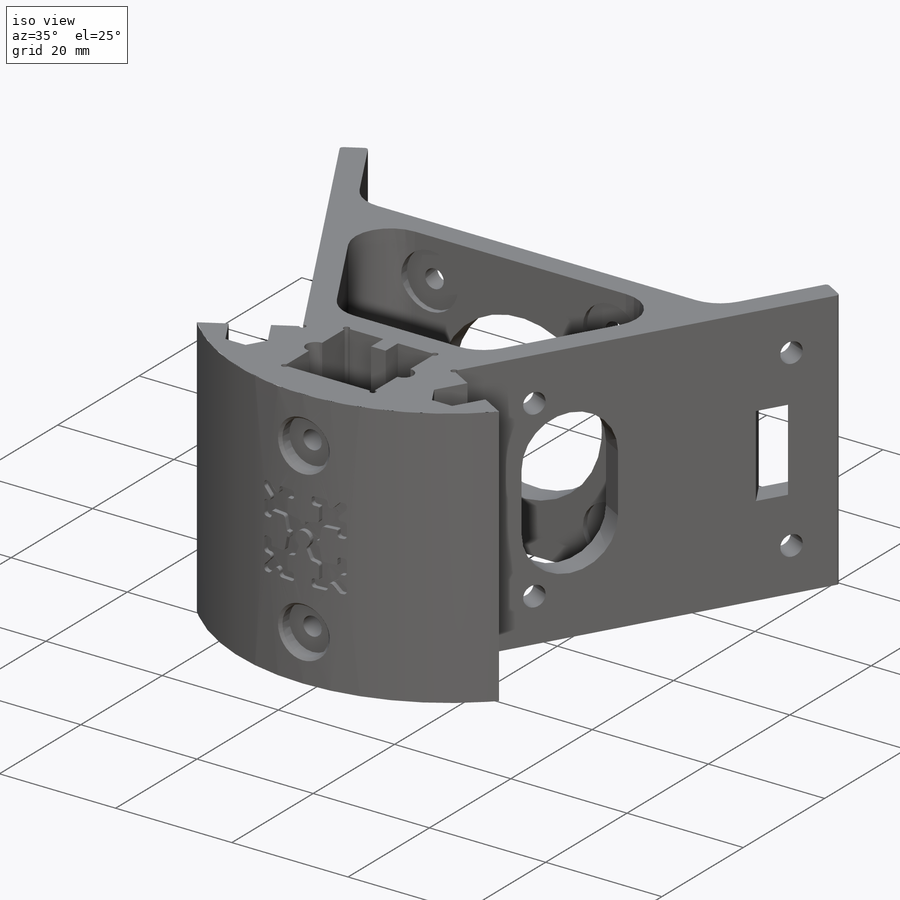
[diagram: iso view]
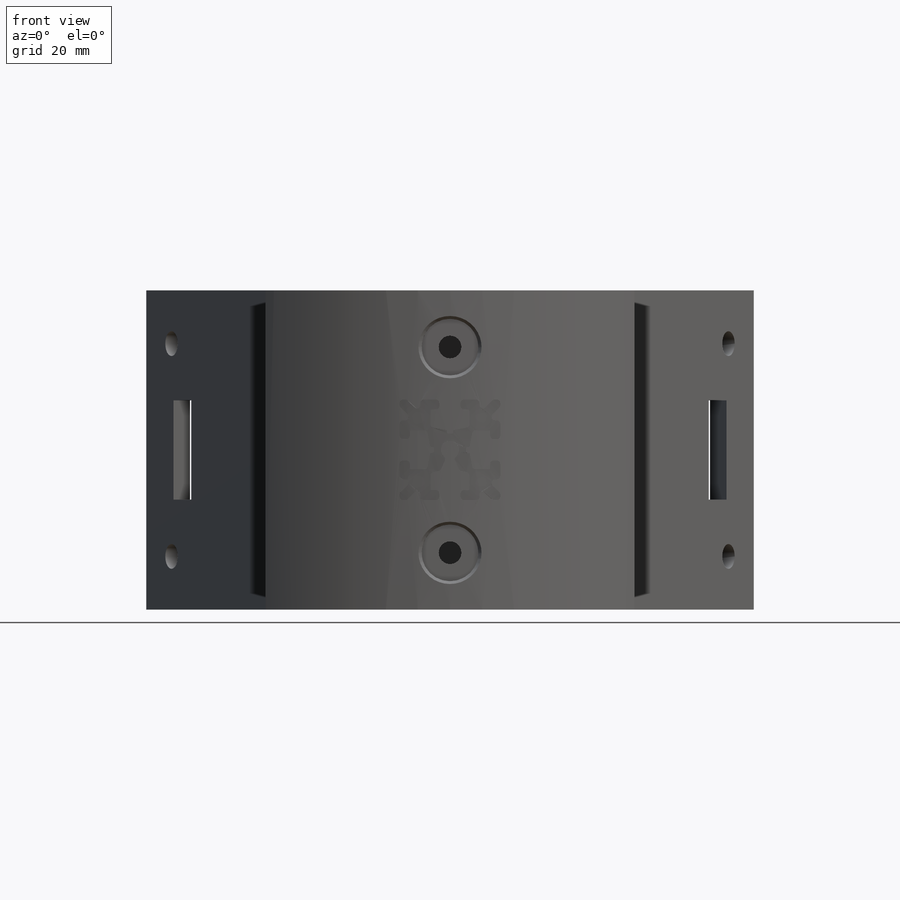
[diagram: front view]
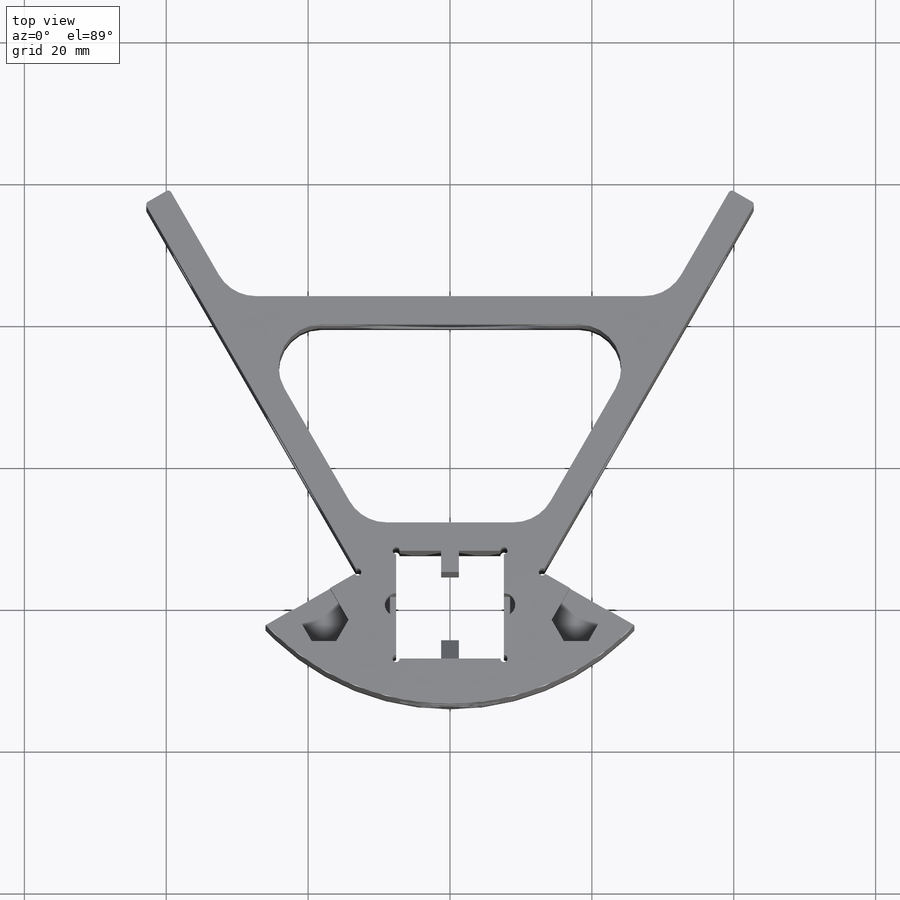
[diagram: top view]
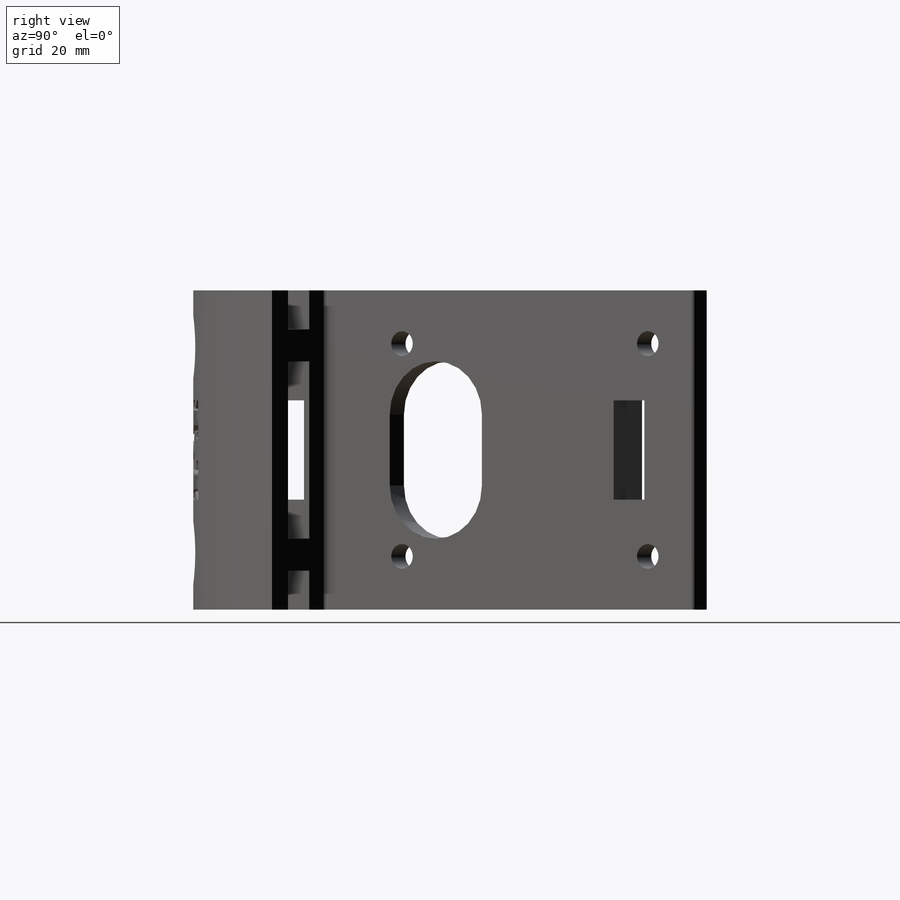
[diagram: right view]
SOLIDWORKS PART (.sldprt)
format: sldprt  version: not decoded by parser v0  size: 1,571,840 bytes
history: native  units: mm
features: sketch x21, cut_extrude x15, extrude x3, material x1, plane x1, chamfer x1, mirror x1, fillet x1 (+12 scaffold rows collapsed)
feature tree (56):
  scaffold x12  (default folders/planes/origin — collapsed)
  material  "Material <not specified>"
  sketch  "Sketch1"  dims[c1.D1=16.0mm c1.D2=37.5mm c1.D3=~45.107307mm c2.D2=75.0mm c2.D3=52.5mm c3.D3=~146.237758deg]
  sketch  "Sketch4"  dims[c1.D2=72.0mm c1.D6=72.0mm c1.D13=6.0mm c1.D14=6.0mm c1.D1=22.0mm c1.D3=~47.163799mm c2.D3=30.0deg c2.D4=15.0mm c2.D5=16.0mm c2.D6=111.0mm c3.D5=26.0mm c3.D6=15.0mm c4.D6=120.0deg c4.D7=4.0mm c4.D8=57.5mm c4.D9=60.0mm c4.D10=15.2mm c4.D11=6.4mm c4.D12=4.0mm c5.D11=4.0mm]
  extrude  "Boss-Extrude3"  Depth=45mm
  sketch  "Sketch5"  dims[D1=28.0mm D3=3.2mm D2=31.0mm]
  cut_extrude  "Cut-Extrude1"  [1 undecoded]
  sketch  "Sketch6"
  plane  "Plane1"
  sketch  "Sketch9"  dims[D1=2.5mm D2=3.0mm]
  extrude  "Boss-Extrude4"  [1 undecoded]
  sketch  "Sketch10"  dims[D1=8.0mm D2=8.0mm D3=8.0mm]
  cut_extrude  "Cut-Extrude4"  Depth=4mm
  sketch  "Sketch8"  dims[D1=1.0mm]
  cut_extrude  "Cut-Extrude3"  [1 undecoded]
  sketch  "Sketch7"  dims[D1=5.0mm D2=~14.997427mm]
  chamfer  "Chamfer1"  Distance=0.5mm Angle=45deg
  sketch  "Sketch11"  dims[D1=3.2mm]
  cut_extrude  "Cut-Extrude5"  [1 undecoded]
  sketch  "Sketch12"  dims[D2=3.5mm D3=40.0mm D1=7.5mm]
  cut_extrude  "Cut-Extrude6"  [1 undecoded]
  sketch  "Sketch13"  dims[D1=3.2mm]
  cut_extrude  "Cut-Extrude7"  Depth=20mm
  sketch  "Sketch14"  dims[D2=6.0mm D1=7.5mm]
  cut_extrude  "Cut-Extrude8"  Depth=5.5mm
  sketch  "Sketch15"  dims[D1=0.0mm D2=0.0mm]
  cut_extrude  "Cut-Extrude9"  Depth=5.5mm
  sketch  "Sketch17"  dims[D1=0.0mm D2=0.0mm]
  cut_extrude  "Cut-Extrude10"  Depth=4.5mm
  sketch  "Sketch18"  dims[D1=5.0mm]
  cut_extrude  "Cut-Extrude11"  Depth=5.5mm
  sketch  "Sketch19"  dims[c1.D1=~1.902576mm c2.D1=45.0deg c2.D2=3.0mm c2.D3=3.0mm c2.D4=~3.179926mm c3.D4=45.0deg c3.D1=~2.827665mm c4.D1=135.0deg c4.D2=12.0mm]
  cut_extrude  "Cut-Extrude12"  Depth=4.5mm
  sketch  "Sketch22"  dims[D2=3.5mm D3=40.0mm D1=7.5mm]
  cut_extrude  "Cut-Extrude13"  [1 undecoded]
  sketch  "Sketch23"  dims[D1=18.0mm]
  extrude  "Stabilizing Feet"  Depth=0.6mm
  sketch  "Sketch24"  dims[D1=0.0mm D2=0.0mm]
  cut_extrude  "Cut-Extrude17"  Depth=0.8mm
  sketch  "Sketch25"  dims[D1=9.5mm]
  cut_extrude  "Cut-Extrude18"  Depth=1mm
  sketch  "Sketch26"  dims[D2=15.0mm D1=10.0mm D3=42.0mm]
  cut_extrude  "Cut-Extrude19"  Depth=10mm
  mirror  "Mirror1"
  fillet  "Fillet1"  Radius=0.5mm
decode coverage: 34 of 42 modeling features carry decoded parameters
note: ~ marks probable driven/reference dimensions
note: 6 parameter values undecoded
summary: no parameter record found for 6 features
note: suppression state not decoded; provenance and decode notes live in map.json
